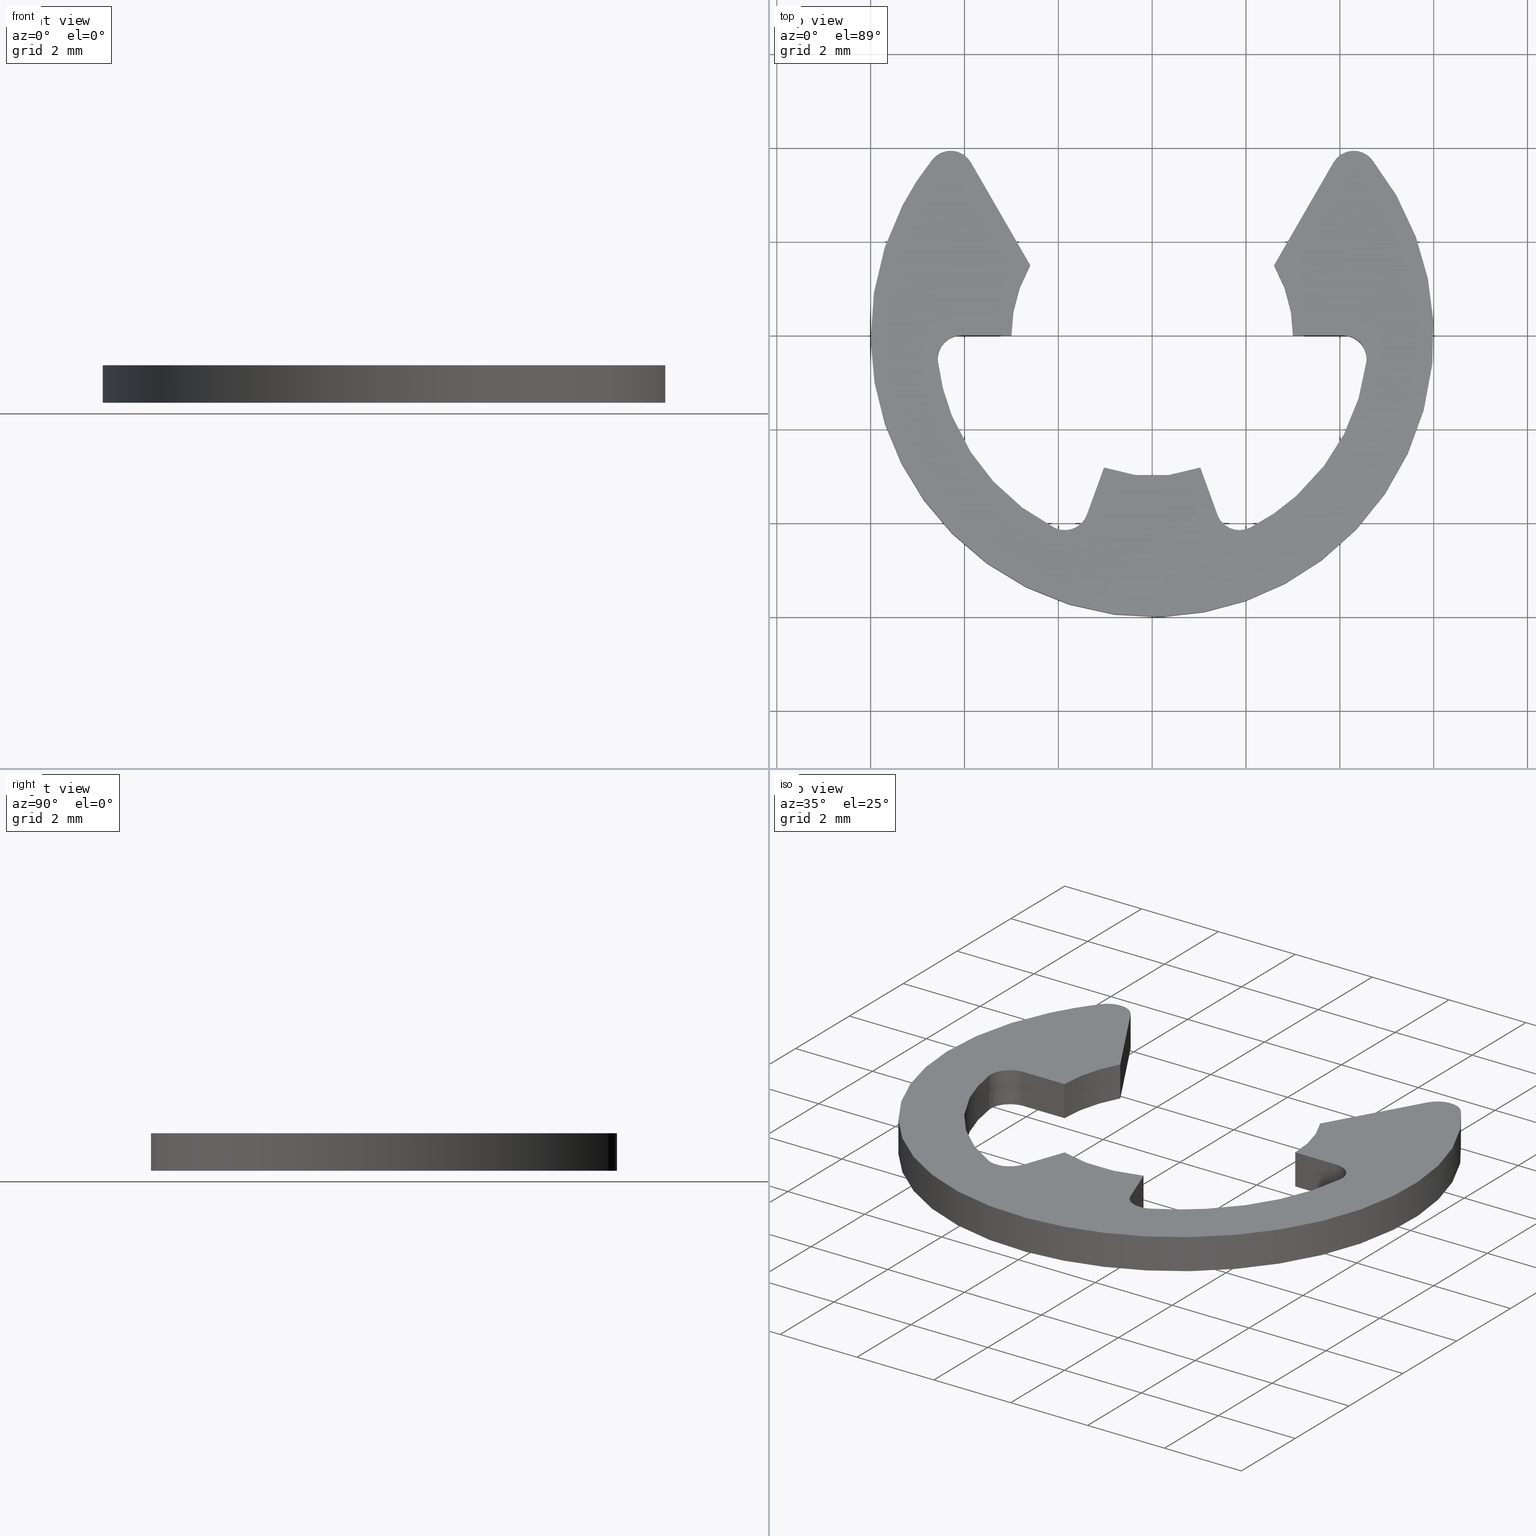
[diagram: canonical four-view strip — front | top / right | iso, engineering-drawing reading convention]
A machine part, canonical four-view strip (front | top / right | iso — engineering-drawing reading convention). The complete STEP part file that produces these views, byte-faithful:
ISO-10303-21;
HEADER;
/****************************************************************
 * Generated by software with PDE/Lib inside                    *
 * PDElib Version 4.4.1-0003, patched  Thursday August 19 11:58 *
 * International Technegroup Inc. (www.iti-oh.com)              *
 ****************************************************************/
FILE_DESCRIPTION((''),'2;1');
FILE_NAME('','2005-04-20T08:53:08',(''),(''),'','CADfix','');
FILE_SCHEMA(('AUTOMOTIVE_DESIGN'));
ENDSEC;
DATA;
#5=APPLICATION_CONTEXT('automotive design');
#6=APPLICATION_PROTOCOL_DEFINITION('Draft International Standard','automotive_design',1998,#5);
#7=PRODUCT_CONTEXT('None',#5,'mechanical');
#8=PRODUCT('retainer','','None',(#7));
#9=PRODUCT_RELATED_PRODUCT_CATEGORY('part','description',(#8));
#10=PRODUCT_DEFINITION_FORMATION('None','None',#8);
#11=PRODUCT_DEFINITION_CONTEXT('part definition',#5,'design');
#12=PRODUCT_DEFINITION('None','None',#10,#11);
#18=(NAMED_UNIT(*)PLANE_ANGLE_UNIT()SI_UNIT($,.RADIAN.));
#19=DIMENSIONAL_EXPONENTS(0.0,0.0,0.0,0.0,0.0,0.0,0.0);
#20=PLANE_ANGLE_MEASURE_WITH_UNIT(PLANE_ANGLE_MEASURE(0.017453292500000),#18);
#24=(CONVERSION_BASED_UNIT('DEGREE',#20)NAMED_UNIT(#19)PLANE_ANGLE_UNIT());
#28=(NAMED_UNIT(*)SI_UNIT($,.STERADIAN.)SOLID_ANGLE_UNIT());
#32=(LENGTH_UNIT()NAMED_UNIT(*)SI_UNIT(.MILLI.,.METRE.));
#34=UNCERTAINTY_MEASURE_WITH_UNIT(LENGTH_MEASURE(0.001000000000000),#32,'DISTANCE_ACCURACY_VALUE','');
#36=(GEOMETRIC_REPRESENTATION_CONTEXT(3)GLOBAL_UNCERTAINTY_ASSIGNED_CONTEXT((#34))GLOBAL_UNIT_ASSIGNED_CONTEXT((#24,#28,#32))REPRESENTATION_CONTEXT('None','None'));
#37=AXIS2_PLACEMENT_3D('',#38,#39,#40);
#38=CARTESIAN_POINT('',(0.0,0.0,0.0));
#39=DIRECTION('',(0.0,0.0,1.0));
#40=DIRECTION('',(1.0,0.0,0.0));
#41=ADVANCED_BREP_SHAPE_REPRESENTATION('',(#37,#941),#36);
#42=PRODUCT_DEFINITION_SHAPE('','',#12);
#43=SHAPE_DEFINITION_REPRESENTATION(#42,#41);
#44=CARTESIAN_POINT('',(-6.581332474170076,-6.496215426562750,0.0));
#45=CARTESIAN_POINT('',(6.581332683235766,-6.496215426562750,0.0));
#46=CARTESIAN_POINT('',(-6.581332474170076,4.430458852543654,0.0));
#47=CARTESIAN_POINT('',(6.581332683235766,4.430458852543654,0.0));
#48=B_SPLINE_SURFACE_WITH_KNOTS('',1,1,((#44,#46),(#45,#47)),.UNSPECIFIED.,.F.,.F.,.U.,(2,2),(2,2),(0.0,13.162665157405840),(0.0,10.926674279106400),.UNSPECIFIED.);
#49=CARTESIAN_POINT('',(3.863010000000000,3.684273000000000,0.0));
#50=VERTEX_POINT('',#49);
#51=CARTESIAN_POINT('',(4.686570576171150,3.746472505513260,0.0));
#52=VERTEX_POINT('',#51);
#53=CARTESIAN_POINT('',(3.863010000000000,3.684273000000000,0.0));
#54=CARTESIAN_POINT('',(3.995044526100701,3.912964423524880,0.0));
#55=CARTESIAN_POINT('',(4.258364277141856,3.932851677456801,0.0));
#56=CARTESIAN_POINT('',(4.521684028183013,3.952738931388722,0.0));
#57=CARTESIAN_POINT('',(4.686570576171150,3.746472505513260,0.0));
#65=(BOUNDED_CURVE()B_SPLINE_CURVE(2,(#53,#54,#55,#56,#57),.UNSPECIFIED.,.F.,.U.)B_SPLINE_CURVE_WITH_KNOTS((3,2,3),(0.0,0.500000000000000,1.0),.UNSPECIFIED.)CURVE()GEOMETRIC_REPRESENTATION_ITEM()RATIONAL_B_SPLINE_CURVE((1.0,0.884252020448958,1.0,0.884252020448958,1.0))REPRESENTATION_ITEM(''));
#66=EDGE_CURVE('',#50,#52,#65,.T.);
#67=ORIENTED_EDGE('',*,*,#66,.T.);
#68=CARTESIAN_POINT('',(-4.686575545676350,3.746466289007340,0.0));
#69=VERTEX_POINT('',#68);
#70=CARTESIAN_POINT('',(4.686570576171150,3.746472505513261,0.0));
#71=CARTESIAN_POINT('',(8.165531267817840,-0.605459822599134,0.0));
#72=CARTESIAN_POINT('',(4.082768349135098,-4.396703606942442,0.0));
#73=CARTESIAN_POINT('',(0.000005430452355,-8.187947391285750,0.0));
#74=CARTESIAN_POINT('',(-4.082762517122990,-4.396709022527594,0.0));
#75=CARTESIAN_POINT('',(-8.165530464698330,-0.605470653769442,0.0));
#76=CARTESIAN_POINT('',(-4.686575545676352,3.746466289007337,0.0));
#84=(BOUNDED_CURVE()B_SPLINE_CURVE(2,(#70,#71,#72,#73,#74,#75,#76),.UNSPECIFIED.,.F.,.U.)B_SPLINE_CURVE_WITH_KNOTS((3,2,2,3),(0.0,0.333333333333333,0.666666666666667,1.0),.UNSPECIFIED.)CURVE()GEOMETRIC_REPRESENTATION_ITEM()RATIONAL_B_SPLINE_CURVE((1.0,0.732784385789331,1.0,0.732784385789331,1.0,0.732784385789331,1.0))REPRESENTATION_ITEM(''));
#85=EDGE_CURVE('',#52,#69,#84,.T.);
#86=ORIENTED_EDGE('',*,*,#85,.T.);
#87=CARTESIAN_POINT('',(-3.863011481367470,3.684265317414915,0.0));
#88=VERTEX_POINT('',#87);
#89=CARTESIAN_POINT('',(-4.686575545676350,3.746466289007340,0.0));
#90=CARTESIAN_POINT('',(-4.521688937545055,3.952732709392030,0.0));
#91=CARTESIAN_POINT('',(-4.258368013302476,3.932845010295169,0.0));
#92=CARTESIAN_POINT('',(-3.995047089059899,3.912957311198309,0.0));
#93=CARTESIAN_POINT('',(-3.863011481367468,3.684265317414917,0.0));
#101=(BOUNDED_CURVE()B_SPLINE_CURVE(2,(#89,#90,#91,#92,#93),.UNSPECIFIED.,.F.,.U.)B_SPLINE_CURVE_WITH_KNOTS((3,2,3),(0.0,0.500000000000000,1.0),.UNSPECIFIED.)CURVE()GEOMETRIC_REPRESENTATION_ITEM()RATIONAL_B_SPLINE_CURVE((1.0,0.884251858320853,1.0,0.884251858320853,1.0))REPRESENTATION_ITEM(''));
#102=EDGE_CURVE('',#69,#88,#101,.T.);
#103=ORIENTED_EDGE('',*,*,#102,.T.);
#104=CARTESIAN_POINT('',(-2.599997000000000,1.496666000000000,0.0));
#105=VERTEX_POINT('',#104);
#106=CARTESIAN_POINT('',(-3.863011481367470,3.684265317414915,0.0));
#107=CARTESIAN_POINT('',(-2.599997000000000,1.496666000000000,0.0));
#108=QUASI_UNIFORM_CURVE('',1,(#106,#107),.UNSPECIFIED.,.F.,.U.);
#109=EDGE_CURVE('',#88,#105,#108,.T.);
#110=ORIENTED_EDGE('',*,*,#109,.T.);
#111=CARTESIAN_POINT('',(-2.999999999999780,-0.000001151917306,0.0));
#112=VERTEX_POINT('',#111);
#113=CARTESIAN_POINT('',(-2.999999999999780,-0.000001151917306,0.0));
#114=CARTESIAN_POINT('',(-2.999999839543698,0.801785137004089,0.0));
#115=CARTESIAN_POINT('',(-2.599997000000000,1.496666000000000,0.0));
#123=(BOUNDED_CURVE()B_SPLINE_CURVE(2,(#113,#114,#115),.UNSPECIFIED.,.F.,.U.)CURVE()GEOMETRIC_REPRESENTATION_ITEM()QUASI_UNIFORM_CURVE()RATIONAL_B_SPLINE_CURVE((1.0,0.966091555526800,1.0))REPRESENTATION_ITEM(''));
#124=EDGE_CURVE('',#112,#105,#123,.T.);
#125=ORIENTED_EDGE('',*,*,#124,.F.);
#126=CARTESIAN_POINT('',(-4.069397000000000,0.0,0.0));
#127=VERTEX_POINT('',#126);
#128=CARTESIAN_POINT('',(-2.999999999999780,-0.000001151917306,0.0));
#129=CARTESIAN_POINT('',(-4.069397000000000,0.0,0.0));
#130=QUASI_UNIFORM_CURVE('',1,(#128,#129),.UNSPECIFIED.,.F.,.U.);
#131=EDGE_CURVE('',#112,#127,#130,.T.);
#132=ORIENTED_EDGE('',*,*,#131,.T.);
#133=CARTESIAN_POINT('',(-4.565665037338840,-0.560975692827991,0.0));
#134=VERTEX_POINT('',#133);
#135=CARTESIAN_POINT('',(-4.565665037338842,-0.560975692827991,0.0));
#136=CARTESIAN_POINT('',(-4.593134099878816,-0.337410906238256,0.0));
#137=CARTESIAN_POINT('',(-4.443888552918084,-0.168705453119128,0.0));
#138=CARTESIAN_POINT('',(-4.294643005957350,0.0,0.0));
#139=CARTESIAN_POINT('',(-4.069397000000000,0.0,0.0));
#147=(BOUNDED_CURVE()B_SPLINE_CURVE(2,(#135,#136,#137,#138,#139),.UNSPECIFIED.,.F.,.U.)B_SPLINE_CURVE_WITH_KNOTS((3,2,3),(0.0,0.500000000000000,1.0),.UNSPECIFIED.)CURVE()GEOMETRIC_REPRESENTATION_ITEM()RATIONAL_B_SPLINE_CURVE((1.0,0.911753556001221,1.0,0.911753556001221,1.0))REPRESENTATION_ITEM(''));
#148=EDGE_CURVE('',#134,#127,#147,.T.);
#149=ORIENTED_EDGE('',*,*,#148,.F.);
#150=CARTESIAN_POINT('',(-2.088696213768935,-4.098456798184810,0.0));
#151=VERTEX_POINT('',#150);
#152=CARTESIAN_POINT('',(-2.088696213768935,-4.098456798184815,0.0));
#153=CARTESIAN_POINT('',(-4.267449413650987,-2.988098977322558,0.0));
#154=CARTESIAN_POINT('',(-4.565665037338840,-0.560975692827991,0.0));
#162=(BOUNDED_CURVE()B_SPLINE_CURVE(2,(#152,#153,#154),.UNSPECIFIED.,.F.,.U.)CURVE()GEOMETRIC_REPRESENTATION_ITEM()QUASI_UNIFORM_CURVE()RATIONAL_B_SPLINE_CURVE((1.0,0.882986431893304,1.0))REPRESENTATION_ITEM(''));
#163=EDGE_CURVE('',#151,#134,#162,.T.);
#164=ORIENTED_EDGE('',*,*,#163,.F.);
#165=CARTESIAN_POINT('',(-1.391817958012584,-3.823983127035450,0.0));
#166=VERTEX_POINT('',#165);
#167=CARTESIAN_POINT('',(-1.391817958012584,-3.823983127035450,0.0));
#168=CARTESIAN_POINT('',(-1.468856879404417,-4.035644854333030,0.0));
#169=CARTESIAN_POINT('',(-1.678433037067881,-4.118188881075313,0.0));
#170=CARTESIAN_POINT('',(-1.888009194731345,-4.200732907817598,0.0));
#171=CARTESIAN_POINT('',(-2.088696213768936,-4.098456798184811,0.0));
#179=(BOUNDED_CURVE()B_SPLINE_CURVE(2,(#167,#168,#169,#170,#171),.UNSPECIFIED.,.F.,.U.)B_SPLINE_CURVE_WITH_KNOTS((3,2,3),(0.0,0.500000000000000,1.0),.UNSPECIFIED.)CURVE()GEOMETRIC_REPRESENTATION_ITEM()RATIONAL_B_SPLINE_CURVE((1.0,0.911753678768537,1.0,0.911753678768537,1.0))REPRESENTATION_ITEM(''));
#180=EDGE_CURVE('',#166,#151,#179,.T.);
#181=ORIENTED_EDGE('',*,*,#180,.F.);
#182=CARTESIAN_POINT('',(-1.026060000000012,-2.819076000000000,0.0));
#183=VERTEX_POINT('',#182);
#184=CARTESIAN_POINT('',(-1.391817958012584,-3.823983127035450,0.0));
#185=CARTESIAN_POINT('',(-1.026060000000012,-2.819076000000000,0.0));
#186=QUASI_UNIFORM_CURVE('',1,(#184,#185),.UNSPECIFIED.,.F.,.U.);
#187=EDGE_CURVE('',#166,#183,#186,.T.);
#188=ORIENTED_EDGE('',*,*,#187,.T.);
#189=CARTESIAN_POINT('',(1.026058412686930,-2.819078596590450,0.0));
#190=VERTEX_POINT('',#189);
#191=CARTESIAN_POINT('',(1.026058412686930,-2.819078596590450,0.0));
#192=CARTESIAN_POINT('',(-0.000000941773228,-3.192532055437769,0.0));
#193=CARTESIAN_POINT('',(-1.026060000000012,-2.819076000000000,0.0));
#201=(BOUNDED_CURVE()B_SPLINE_CURVE(2,(#191,#192,#193),.UNSPECIFIED.,.F.,.U.)CURVE()GEOMETRIC_REPRESENTATION_ITEM()QUASI_UNIFORM_CURVE()RATIONAL_B_SPLINE_CURVE((1.0,0.939692729881005,1.0))REPRESENTATION_ITEM(''));
#202=EDGE_CURVE('',#190,#183,#201,.T.);
#203=ORIENTED_EDGE('',*,*,#202,.F.);
#204=CARTESIAN_POINT('',(1.391815000000000,-3.823982000000000,0.0));
#205=VERTEX_POINT('',#204);
#206=CARTESIAN_POINT('',(1.026058412686930,-2.819078596590450,0.0));
#207=CARTESIAN_POINT('',(1.391815000000000,-3.823982000000000,0.0));
#208=QUASI_UNIFORM_CURVE('',1,(#206,#207),.UNSPECIFIED.,.F.,.U.);
#209=EDGE_CURVE('',#190,#205,#208,.T.);
#210=ORIENTED_EDGE('',*,*,#209,.T.);
#211=CARTESIAN_POINT('',(2.088695450060575,-4.098452796061555,0.0));
#212=VERTEX_POINT('',#211);
#213=CARTESIAN_POINT('',(2.088695450060575,-4.098452796061555,0.0));
#214=CARTESIAN_POINT('',(1.888008509862501,-4.200729531546816,0.0));
#215=CARTESIAN_POINT('',(1.678431727553087,-4.118186383333256,0.0));
#216=CARTESIAN_POINT('',(1.468854945243672,-4.035643235119693,0.0));
#217=CARTESIAN_POINT('',(1.391815000000000,-3.823982000000000,0.0));
#225=(BOUNDED_CURVE()B_SPLINE_CURVE(2,(#213,#214,#215,#216,#217),.UNSPECIFIED.,.F.,.U.)B_SPLINE_CURVE_WITH_KNOTS((3,2,3),(0.0,0.500000000000000,1.0),.UNSPECIFIED.)CURVE()GEOMETRIC_REPRESENTATION_ITEM()RATIONAL_B_SPLINE_CURVE((1.0,0.911753755466187,1.0,0.911753755466187,1.0))REPRESENTATION_ITEM(''));
#226=EDGE_CURVE('',#212,#205,#225,.T.);
#227=ORIENTED_EDGE('',*,*,#226,.F.);
#228=CARTESIAN_POINT('',(4.565665992471750,-0.560975975588001,0.0));
#229=VERTEX_POINT('',#228);
#230=CARTESIAN_POINT('',(4.565665992471750,-0.560975975588001,0.0));
#231=CARTESIAN_POINT('',(4.267448520479672,-2.988096558573858,0.0));
#232=CARTESIAN_POINT('',(2.088695450060575,-4.098452796061555,0.0));
#240=(BOUNDED_CURVE()B_SPLINE_CURVE(2,(#230,#231,#232),.UNSPECIFIED.,.F.,.U.)CURVE()GEOMETRIC_REPRESENTATION_ITEM()QUASI_UNIFORM_CURVE()RATIONAL_B_SPLINE_CURVE((1.0,0.882986498269924,1.0))REPRESENTATION_ITEM(''));
#241=EDGE_CURVE('',#229,#212,#240,.T.);
#242=ORIENTED_EDGE('',*,*,#241,.F.);
#243=CARTESIAN_POINT('',(4.069397157079631,-2.464695E-014,0.0));
#244=VERTEX_POINT('',#243);
#245=CARTESIAN_POINT('',(4.069397157079631,-2.461139E-014,0.0));
#246=CARTESIAN_POINT('',(4.294643165169120,-0.000000070763144,0.0));
#247=CARTESIAN_POINT('',(4.443888659346118,-0.168705573424196,0.0));
#248=CARTESIAN_POINT('',(4.593134153523118,-0.337411076085247,0.0));
#249=CARTESIAN_POINT('',(4.565665992471750,-0.560975975588001,0.0));
#257=(BOUNDED_CURVE()B_SPLINE_CURVE(2,(#245,#246,#247,#248,#249),.UNSPECIFIED.,.F.,.U.)B_SPLINE_CURVE_WITH_KNOTS((3,2,3),(0.0,0.500000000000000,1.0),.UNSPECIFIED.)CURVE()GEOMETRIC_REPRESENTATION_ITEM()RATIONAL_B_SPLINE_CURVE((1.0,0.911753554545202,1.0,0.911753554545202,1.0))REPRESENTATION_ITEM(''));
#258=EDGE_CURVE('',#244,#229,#257,.T.);
#259=ORIENTED_EDGE('',*,*,#258,.F.);
#260=CARTESIAN_POINT('',(3.0,0.0,0.0));
#261=VERTEX_POINT('',#260);
#262=CARTESIAN_POINT('',(4.069397157079631,-2.464695E-014,0.0));
#263=CARTESIAN_POINT('',(3.0,0.0,0.0));
#264=QUASI_UNIFORM_CURVE('',1,(#262,#263),.UNSPECIFIED.,.F.,.U.);
#265=EDGE_CURVE('',#244,#261,#264,.T.);
#266=ORIENTED_EDGE('',*,*,#265,.T.);
#267=CARTESIAN_POINT('',(2.599998350847290,1.496665819610834,0.0));
#268=VERTEX_POINT('',#267);
#269=CARTESIAN_POINT('',(2.599998350847290,1.496665819610836,0.0));
#270=CARTESIAN_POINT('',(3.000000000000000,0.801785496624863,0.0));
#271=CARTESIAN_POINT('',(3.0,0.0,0.0));
#279=(BOUNDED_CURVE()B_SPLINE_CURVE(2,(#269,#270,#271),.UNSPECIFIED.,.F.,.U.)CURVE()GEOMETRIC_REPRESENTATION_ITEM()QUASI_UNIFORM_CURVE()RATIONAL_B_SPLINE_CURVE((1.0,0.966091640826350,1.0))REPRESENTATION_ITEM(''));
#280=EDGE_CURVE('',#268,#261,#279,.T.);
#281=ORIENTED_EDGE('',*,*,#280,.F.);
#282=CARTESIAN_POINT('',(2.599998350847290,1.496665819610834,0.0));
#283=CARTESIAN_POINT('',(3.863010000000000,3.684273000000000,0.0));
#284=QUASI_UNIFORM_CURVE('',1,(#282,#283),.UNSPECIFIED.,.F.,.U.);
#285=EDGE_CURVE('',#268,#50,#284,.T.);
#286=ORIENTED_EDGE('',*,*,#285,.T.);
#287=EDGE_LOOP('',(#67,#86,#103,#110,#125,#132,#149,#164,#181,#188,#203,#210,#227,#242,#259,#266,#281,#286));
#288=FACE_OUTER_BOUND('',#287,.T.);
#289=ADVANCED_FACE('',(#288),#48,.F.);
#290=CARTESIAN_POINT('',(-6.581331910933198,-6.496215426562749,0.799987999999900));
#291=CARTESIAN_POINT('',(6.581332656440507,-6.496215426562750,0.799987999999900));
#292=CARTESIAN_POINT('',(-6.581331910933198,4.430458852543654,0.799987999999900));
#293=CARTESIAN_POINT('',(6.581332656440507,4.430458852543654,0.799987999999900));
#294=B_SPLINE_SURFACE_WITH_KNOTS('',1,1,((#290,#292),(#291,#293)),.UNSPECIFIED.,.F.,.F.,.U.,(2,2),(2,2),(0.0,13.162664567373710),(0.0,10.926674279106400),.UNSPECIFIED.);
#295=CARTESIAN_POINT('',(3.863010000000000,3.684273000000000,0.799987999999918));
#296=VERTEX_POINT('',#295);
#297=CARTESIAN_POINT('',(4.686570576171150,3.746472505513260,0.799987999999918));
#298=VERTEX_POINT('',#297);
#299=CARTESIAN_POINT('',(3.863010000000000,3.684273000000000,0.799987999999918));
#300=CARTESIAN_POINT('',(3.995044526100701,3.912964423524880,0.799987999999918));
#301=CARTESIAN_POINT('',(4.258364277141856,3.932851677456801,0.799987999999918));
#302=CARTESIAN_POINT('',(4.521684028183013,3.952738931388722,0.799987999999918));
#303=CARTESIAN_POINT('',(4.686570576171150,3.746472505513260,0.799987999999918));
#311=(BOUNDED_CURVE()B_SPLINE_CURVE(2,(#299,#300,#301,#302,#303),.UNSPECIFIED.,.F.,.U.)B_SPLINE_CURVE_WITH_KNOTS((3,2,3),(0.0,0.500000000000000,1.0),.UNSPECIFIED.)CURVE()GEOMETRIC_REPRESENTATION_ITEM()RATIONAL_B_SPLINE_CURVE((1.0,0.884252020448958,1.0,0.884252020448958,1.0))REPRESENTATION_ITEM(''));
#312=EDGE_CURVE('',#296,#298,#311,.T.);
#313=ORIENTED_EDGE('',*,*,#312,.F.);
#314=CARTESIAN_POINT('',(2.599998350847290,1.496665819610834,0.799987999999918));
#315=VERTEX_POINT('',#314);
#316=CARTESIAN_POINT('',(2.599998350847290,1.496665819610834,0.799987999999918));
#317=CARTESIAN_POINT('',(3.863010000000000,3.684273000000000,0.799987999999918));
#318=QUASI_UNIFORM_CURVE('',1,(#316,#317),.UNSPECIFIED.,.F.,.U.);
#319=EDGE_CURVE('',#315,#296,#318,.T.);
#320=ORIENTED_EDGE('',*,*,#319,.F.);
#321=CARTESIAN_POINT('',(3.0,0.0,0.799987999999918));
#322=VERTEX_POINT('',#321);
#323=CARTESIAN_POINT('',(2.599998350847290,1.496665819610836,0.799987999999918));
#324=CARTESIAN_POINT('',(3.000000000000000,0.801785496624863,0.799987999999918));
#325=CARTESIAN_POINT('',(3.0,0.0,0.799987999999918));
#333=(BOUNDED_CURVE()B_SPLINE_CURVE(2,(#323,#324,#325),.UNSPECIFIED.,.F.,.U.)CURVE()GEOMETRIC_REPRESENTATION_ITEM()QUASI_UNIFORM_CURVE()RATIONAL_B_SPLINE_CURVE((1.0,0.966091640826350,1.0))REPRESENTATION_ITEM(''));
#334=EDGE_CURVE('',#315,#322,#333,.T.);
#335=ORIENTED_EDGE('',*,*,#334,.T.);
#336=CARTESIAN_POINT('',(4.069397157079631,-2.464695E-014,0.799987999999918));
#337=VERTEX_POINT('',#336);
#338=CARTESIAN_POINT('',(4.069397157079631,-2.464695E-014,0.799987999999918));
#339=CARTESIAN_POINT('',(3.0,0.0,0.799987999999918));
#340=QUASI_UNIFORM_CURVE('',1,(#338,#339),.UNSPECIFIED.,.F.,.U.);
#341=EDGE_CURVE('',#337,#322,#340,.T.);
#342=ORIENTED_EDGE('',*,*,#341,.F.);
#343=CARTESIAN_POINT('',(4.565665992471750,-0.560975975588001,0.799987999999918));
#344=VERTEX_POINT('',#343);
#345=CARTESIAN_POINT('',(4.069397157079631,-2.461139E-014,0.799987999999918));
#346=CARTESIAN_POINT('',(4.294643165169120,-0.000000070763144,0.799987999999918));
#347=CARTESIAN_POINT('',(4.443888659346118,-0.168705573424196,0.799987999999918));
#348=CARTESIAN_POINT('',(4.593134153523118,-0.337411076085247,0.799987999999918));
#349=CARTESIAN_POINT('',(4.565665992471750,-0.560975975588001,0.799987999999918));
#357=(BOUNDED_CURVE()B_SPLINE_CURVE(2,(#345,#346,#347,#348,#349),.UNSPECIFIED.,.F.,.U.)B_SPLINE_CURVE_WITH_KNOTS((3,2,3),(0.0,0.500000000000000,1.0),.UNSPECIFIED.)CURVE()GEOMETRIC_REPRESENTATION_ITEM()RATIONAL_B_SPLINE_CURVE((1.0,0.911753554545202,1.0,0.911753554545202,1.0))REPRESENTATION_ITEM(''));
#358=EDGE_CURVE('',#337,#344,#357,.T.);
#359=ORIENTED_EDGE('',*,*,#358,.T.);
#360=CARTESIAN_POINT('',(2.088695450060575,-4.098452796061555,0.799987999999918));
#361=VERTEX_POINT('',#360);
#362=CARTESIAN_POINT('',(4.565665992471750,-0.560975975588001,0.799987999999918));
#363=CARTESIAN_POINT('',(4.267448520479672,-2.988096558573858,0.799987999999918));
#364=CARTESIAN_POINT('',(2.088695450060575,-4.098452796061555,0.799987999999918));
#372=(BOUNDED_CURVE()B_SPLINE_CURVE(2,(#362,#363,#364),.UNSPECIFIED.,.F.,.U.)CURVE()GEOMETRIC_REPRESENTATION_ITEM()QUASI_UNIFORM_CURVE()RATIONAL_B_SPLINE_CURVE((1.0,0.882986498269924,1.0))REPRESENTATION_ITEM(''));
#373=EDGE_CURVE('',#344,#361,#372,.T.);
#374=ORIENTED_EDGE('',*,*,#373,.T.);
#375=CARTESIAN_POINT('',(1.391815000000000,-3.823982000000000,0.799987999999918));
#376=VERTEX_POINT('',#375);
#377=CARTESIAN_POINT('',(2.088695450060575,-4.098452796061555,0.799987999999918));
#378=CARTESIAN_POINT('',(1.888008509862501,-4.200729531546816,0.799987999999918));
#379=CARTESIAN_POINT('',(1.678431727553087,-4.118186383333256,0.799987999999918));
#380=CARTESIAN_POINT('',(1.468854945243672,-4.035643235119693,0.799987999999918));
#381=CARTESIAN_POINT('',(1.391815000000000,-3.823982000000000,0.799987999999918));
#389=(BOUNDED_CURVE()B_SPLINE_CURVE(2,(#377,#378,#379,#380,#381),.UNSPECIFIED.,.F.,.U.)B_SPLINE_CURVE_WITH_KNOTS((3,2,3),(0.0,0.500000000000000,1.0),.UNSPECIFIED.)CURVE()GEOMETRIC_REPRESENTATION_ITEM()RATIONAL_B_SPLINE_CURVE((1.0,0.911753755466187,1.0,0.911753755466187,1.0))REPRESENTATION_ITEM(''));
#390=EDGE_CURVE('',#361,#376,#389,.T.);
#391=ORIENTED_EDGE('',*,*,#390,.T.);
#392=CARTESIAN_POINT('',(1.026058412686930,-2.819078596590450,0.799987999999918));
#393=VERTEX_POINT('',#392);
#394=CARTESIAN_POINT('',(1.026058412686930,-2.819078596590450,0.799987999999918));
#395=CARTESIAN_POINT('',(1.391815000000000,-3.823982000000000,0.799987999999918));
#396=QUASI_UNIFORM_CURVE('',1,(#394,#395),.UNSPECIFIED.,.F.,.U.);
#397=EDGE_CURVE('',#393,#376,#396,.T.);
#398=ORIENTED_EDGE('',*,*,#397,.F.);
#399=CARTESIAN_POINT('',(-1.026060000000012,-2.819076000000000,0.799987999999918));
#400=VERTEX_POINT('',#399);
#401=CARTESIAN_POINT('',(1.026058412686930,-2.819078596590450,0.799987999999918));
#402=CARTESIAN_POINT('',(-0.000000941773228,-3.192532055437769,0.799987999999918));
#403=CARTESIAN_POINT('',(-1.026060000000012,-2.819076000000000,0.799987999999918));
#411=(BOUNDED_CURVE()B_SPLINE_CURVE(2,(#401,#402,#403),.UNSPECIFIED.,.F.,.U.)CURVE()GEOMETRIC_REPRESENTATION_ITEM()QUASI_UNIFORM_CURVE()RATIONAL_B_SPLINE_CURVE((1.0,0.939692729881005,1.0))REPRESENTATION_ITEM(''));
#412=EDGE_CURVE('',#393,#400,#411,.T.);
#413=ORIENTED_EDGE('',*,*,#412,.T.);
#414=CARTESIAN_POINT('',(-1.391817958012584,-3.823983127035450,0.799987999999918));
#415=VERTEX_POINT('',#414);
#416=CARTESIAN_POINT('',(-1.391817958012584,-3.823983127035450,0.799987999999918));
#417=CARTESIAN_POINT('',(-1.026060000000012,-2.819076000000000,0.799987999999918));
#418=QUASI_UNIFORM_CURVE('',1,(#416,#417),.UNSPECIFIED.,.F.,.U.);
#419=EDGE_CURVE('',#415,#400,#418,.T.);
#420=ORIENTED_EDGE('',*,*,#419,.F.);
#421=CARTESIAN_POINT('',(-2.088696213768935,-4.098456798184810,0.799987999999918));
#422=VERTEX_POINT('',#421);
#423=CARTESIAN_POINT('',(-1.391817958012584,-3.823983127035450,0.799987999999918));
#424=CARTESIAN_POINT('',(-1.468856879404417,-4.035644854333030,0.799987999999918));
#425=CARTESIAN_POINT('',(-1.678433037067881,-4.118188881075313,0.799987999999918));
#426=CARTESIAN_POINT('',(-1.888009194731345,-4.200732907817598,0.799987999999918));
#427=CARTESIAN_POINT('',(-2.088696213768936,-4.098456798184811,0.799987999999918));
#435=(BOUNDED_CURVE()B_SPLINE_CURVE(2,(#423,#424,#425,#426,#427),.UNSPECIFIED.,.F.,.U.)B_SPLINE_CURVE_WITH_KNOTS((3,2,3),(0.0,0.500000000000000,1.0),.UNSPECIFIED.)CURVE()GEOMETRIC_REPRESENTATION_ITEM()RATIONAL_B_SPLINE_CURVE((1.0,0.911753678768537,1.0,0.911753678768537,1.0))REPRESENTATION_ITEM(''));
#436=EDGE_CURVE('',#415,#422,#435,.T.);
#437=ORIENTED_EDGE('',*,*,#436,.T.);
#438=CARTESIAN_POINT('',(-4.565665037338840,-0.560975692827991,0.799987999999918));
#439=VERTEX_POINT('',#438);
#440=CARTESIAN_POINT('',(-2.088696213768935,-4.098456798184815,0.799987999999918));
#441=CARTESIAN_POINT('',(-4.267449413650987,-2.988098977322558,0.799987999999918));
#442=CARTESIAN_POINT('',(-4.565665037338840,-0.560975692827991,0.799987999999918));
#450=(BOUNDED_CURVE()B_SPLINE_CURVE(2,(#440,#441,#442),.UNSPECIFIED.,.F.,.U.)CURVE()GEOMETRIC_REPRESENTATION_ITEM()QUASI_UNIFORM_CURVE()RATIONAL_B_SPLINE_CURVE((1.0,0.882986431893304,1.0))REPRESENTATION_ITEM(''));
#451=EDGE_CURVE('',#422,#439,#450,.T.);
#452=ORIENTED_EDGE('',*,*,#451,.T.);
#453=CARTESIAN_POINT('',(-4.069397000000000,0.0,0.799987999999918));
#454=VERTEX_POINT('',#453);
#455=CARTESIAN_POINT('',(-4.565665037338842,-0.560975692827991,0.799987999999918));
#456=CARTESIAN_POINT('',(-4.593134099878816,-0.337410906238256,0.799987999999918));
#457=CARTESIAN_POINT('',(-4.443888552918084,-0.168705453119128,0.799987999999918));
#458=CARTESIAN_POINT('',(-4.294643005957350,0.0,0.799987999999918));
#459=CARTESIAN_POINT('',(-4.069397000000000,0.0,0.799987999999918));
#467=(BOUNDED_CURVE()B_SPLINE_CURVE(2,(#455,#456,#457,#458,#459),.UNSPECIFIED.,.F.,.U.)B_SPLINE_CURVE_WITH_KNOTS((3,2,3),(0.0,0.500000000000000,1.0),.UNSPECIFIED.)CURVE()GEOMETRIC_REPRESENTATION_ITEM()RATIONAL_B_SPLINE_CURVE((1.0,0.911753556001221,1.0,0.911753556001221,1.0))REPRESENTATION_ITEM(''));
#468=EDGE_CURVE('',#439,#454,#467,.T.);
#469=ORIENTED_EDGE('',*,*,#468,.T.);
#470=CARTESIAN_POINT('',(-2.999999999999780,-0.000001151917306,0.799987999999918));
#471=VERTEX_POINT('',#470);
#472=CARTESIAN_POINT('',(-2.999999999999780,-0.000001151917306,0.799987999999918));
#473=CARTESIAN_POINT('',(-4.069397000000000,0.0,0.799987999999918));
#474=QUASI_UNIFORM_CURVE('',1,(#472,#473),.UNSPECIFIED.,.F.,.U.);
#475=EDGE_CURVE('',#471,#454,#474,.T.);
#476=ORIENTED_EDGE('',*,*,#475,.F.);
#477=CARTESIAN_POINT('',(-2.599997000000000,1.496666000000000,0.799987999999918));
#478=VERTEX_POINT('',#477);
#479=CARTESIAN_POINT('',(-2.999999999999780,-0.000001151917306,0.799987999999918));
#480=CARTESIAN_POINT('',(-2.999999839543698,0.801785137004089,0.799987999999918));
#481=CARTESIAN_POINT('',(-2.599997000000000,1.496666000000000,0.799987999999918));
#489=(BOUNDED_CURVE()B_SPLINE_CURVE(2,(#479,#480,#481),.UNSPECIFIED.,.F.,.U.)CURVE()GEOMETRIC_REPRESENTATION_ITEM()QUASI_UNIFORM_CURVE()RATIONAL_B_SPLINE_CURVE((1.0,0.966091555526800,1.0))REPRESENTATION_ITEM(''));
#490=EDGE_CURVE('',#471,#478,#489,.T.);
#491=ORIENTED_EDGE('',*,*,#490,.T.);
#492=CARTESIAN_POINT('',(-3.863011481367470,3.684265317414915,0.799987999999918));
#493=VERTEX_POINT('',#492);
#494=CARTESIAN_POINT('',(-3.863011481367470,3.684265317414915,0.799987999999918));
#495=CARTESIAN_POINT('',(-2.599997000000000,1.496666000000000,0.799987999999918));
#496=QUASI_UNIFORM_CURVE('',1,(#494,#495),.UNSPECIFIED.,.F.,.U.);
#497=EDGE_CURVE('',#493,#478,#496,.T.);
#498=ORIENTED_EDGE('',*,*,#497,.F.);
#499=CARTESIAN_POINT('',(-4.686575545676350,3.746466289007340,0.799987999999918));
#500=VERTEX_POINT('',#499);
#501=CARTESIAN_POINT('',(-4.686575545676350,3.746466289007340,0.799987999999918));
#502=CARTESIAN_POINT('',(-4.521688937545055,3.952732709392030,0.799987999999918));
#503=CARTESIAN_POINT('',(-4.258368013302476,3.932845010295169,0.799987999999918));
#504=CARTESIAN_POINT('',(-3.995047089059899,3.912957311198309,0.799987999999918));
#505=CARTESIAN_POINT('',(-3.863011481367468,3.684265317414917,0.799987999999918));
#513=(BOUNDED_CURVE()B_SPLINE_CURVE(2,(#501,#502,#503,#504,#505),.UNSPECIFIED.,.F.,.U.)B_SPLINE_CURVE_WITH_KNOTS((3,2,3),(0.0,0.500000000000000,1.0),.UNSPECIFIED.)CURVE()GEOMETRIC_REPRESENTATION_ITEM()RATIONAL_B_SPLINE_CURVE((1.0,0.884251858320853,1.0,0.884251858320853,1.0))REPRESENTATION_ITEM(''));
#514=EDGE_CURVE('',#500,#493,#513,.T.);
#515=ORIENTED_EDGE('',*,*,#514,.F.);
#516=CARTESIAN_POINT('',(4.686570576171150,3.746472505513261,0.799987999999918));
#517=CARTESIAN_POINT('',(8.165531267817840,-0.605459822599134,0.799987999999918));
#518=CARTESIAN_POINT('',(4.082768349135098,-4.396703606942442,0.799987999999918));
#519=CARTESIAN_POINT('',(0.000005430452355,-8.187947391285750,0.799987999999918));
#520=CARTESIAN_POINT('',(-4.082762517122990,-4.396709022527594,0.799987999999918));
#521=CARTESIAN_POINT('',(-8.165530464698330,-0.605470653769442,0.799987999999918));
#522=CARTESIAN_POINT('',(-4.686575545676352,3.746466289007337,0.799987999999918));
#530=(BOUNDED_CURVE()B_SPLINE_CURVE(2,(#516,#517,#518,#519,#520,#521,#522),.UNSPECIFIED.,.F.,.U.)B_SPLINE_CURVE_WITH_KNOTS((3,2,2,3),(0.0,0.333333333333333,0.666666666666667,1.0),.UNSPECIFIED.)CURVE()GEOMETRIC_REPRESENTATION_ITEM()RATIONAL_B_SPLINE_CURVE((1.0,0.732784385789331,1.0,0.732784385789331,1.0,0.732784385789331,1.0))REPRESENTATION_ITEM(''));
#531=EDGE_CURVE('',#298,#500,#530,.T.);
#532=ORIENTED_EDGE('',*,*,#531,.F.);
#533=EDGE_LOOP('',(#313,#320,#335,#342,#359,#374,#391,#398,#413,#420,#437,#452,#469,#476,#491,#498,#515,#532));
#534=FACE_OUTER_BOUND('',#533,.T.);
#535=ADVANCED_FACE('',(#534),#294,.T.);
#536=CARTESIAN_POINT('',(3.926097472078751,3.793543922414719,-0.039959396191345));
#537=CARTESIAN_POINT('',(2.536909742352494,1.387395448991825,-0.039959396191345));
#538=CARTESIAN_POINT('',(3.926097472078751,3.793543922414719,0.839947360429013));
#539=CARTESIAN_POINT('',(2.536909742352494,1.387395448991825,0.839947360429013));
#540=B_SPLINE_SURFACE_WITH_KNOTS('',1,1,((#536,#538),(#537,#539)),.UNSPECIFIED.,.F.,.F.,.U.,(2,2),(2,2),(0.0,2.778379568125513),(0.041708337925747,0.958291624821350),.UNSPECIFIED.);
#541=ORIENTED_EDGE('',*,*,#285,.F.);
#542=CARTESIAN_POINT('',(2.599998350847290,1.496665819610834,0.799987999999918));
#543=CARTESIAN_POINT('',(2.599998350847290,1.496665819610834,0.0));
#544=QUASI_UNIFORM_CURVE('',1,(#542,#543),.UNSPECIFIED.,.F.,.U.);
#545=EDGE_CURVE('',#315,#268,#544,.T.);
#546=ORIENTED_EDGE('',*,*,#545,.F.);
#547=ORIENTED_EDGE('',*,*,#319,.T.);
#548=CARTESIAN_POINT('',(3.863010000000000,3.684273000000000,0.799987999999918));
#549=CARTESIAN_POINT('',(3.863010000000000,3.684273000000000,0.0));
#550=QUASI_UNIFORM_CURVE('',1,(#548,#549),.UNSPECIFIED.,.F.,.U.);
#551=EDGE_CURVE('',#296,#50,#550,.T.);
#552=ORIENTED_EDGE('',*,*,#551,.T.);
#553=EDGE_LOOP('',(#541,#546,#547,#552));
#554=FACE_OUTER_BOUND('',#553,.T.);
#555=ADVANCED_FACE('',(#554),#540,.T.);
#556=CARTESIAN_POINT('',(2.999885769192513,-0.026179606495119,0.819987699999916));
#557=CARTESIAN_POINT('',(2.999885769192513,-0.026179606495119,-0.020499692499998));
#558=CARTESIAN_POINT('',(3.007369289381982,0.831346870231597,0.819987699999916));
#559=CARTESIAN_POINT('',(3.007369289381982,0.831346870231597,-0.020499692499998));
#560=CARTESIAN_POINT('',(2.560502567057572,1.563274321445720,0.819987699999916));
#561=CARTESIAN_POINT('',(2.560502567057572,1.563274321445720,-0.020499692499998));
#569=(BOUNDED_SURFACE()B_SPLINE_SURFACE(1,2,((#556,#558,#560),(#557,#559,#561)),.UNSPECIFIED.,.F.,.F.,.U.)B_SPLINE_SURFACE_WITH_KNOTS((2,2),(3,3),(0.0,1.0),(0.0,0.966415662023844),.UNSPECIFIED.)GEOMETRIC_REPRESENTATION_ITEM()RATIONAL_B_SPLINE_SURFACE(((1.0,0.960202746810327,0.997326871196711),(1.0,0.960202746810327,0.997326871196711)))REPRESENTATION_ITEM('')SURFACE());
#570=ORIENTED_EDGE('',*,*,#280,.T.);
#571=CARTESIAN_POINT('',(3.0,0.0,0.799987999999918));
#572=CARTESIAN_POINT('',(3.0,0.0,0.0));
#573=QUASI_UNIFORM_CURVE('',1,(#571,#572),.UNSPECIFIED.,.F.,.U.);
#574=EDGE_CURVE('',#322,#261,#573,.T.);
#575=ORIENTED_EDGE('',*,*,#574,.F.);
#576=ORIENTED_EDGE('',*,*,#334,.F.);
#577=ORIENTED_EDGE('',*,*,#545,.T.);
#578=EDGE_LOOP('',(#570,#575,#576,#577));
#579=FACE_OUTER_BOUND('',#578,.T.);
#580=ADVANCED_FACE('',(#579),#569,.F.);
#581=CARTESIAN_POINT('',(2.946583625538485,0.0,0.839947369010522));
#582=CARTESIAN_POINT('',(2.946583625538485,0.0,-0.039959419077755));
#583=CARTESIAN_POINT('',(4.122813330756877,0.0,0.839947369010522));
#584=CARTESIAN_POINT('',(4.122813330756877,0.0,-0.039959419077755));
#585=B_SPLINE_SURFACE_WITH_KNOTS('',1,1,((#581,#583),(#582,#584)),.UNSPECIFIED.,.F.,.F.,.U.,(2,2),(2,2),(0.041708366239443,0.958291685914621),(0.041708343880251,0.958291499657556),.UNSPECIFIED.);
#586=ORIENTED_EDGE('',*,*,#265,.F.);
#587=CARTESIAN_POINT('',(4.069397157079631,-2.464695E-014,0.799987999999918));
#588=CARTESIAN_POINT('',(4.069397157079631,-2.464695E-014,0.0));
#589=QUASI_UNIFORM_CURVE('',1,(#587,#588),.UNSPECIFIED.,.F.,.U.);
#590=EDGE_CURVE('',#337,#244,#589,.T.);
#591=ORIENTED_EDGE('',*,*,#590,.F.);
#592=ORIENTED_EDGE('',*,*,#341,.T.);
#593=ORIENTED_EDGE('',*,*,#574,.T.);
#594=EDGE_LOOP('',(#586,#591,#592,#593));
#595=FACE_OUTER_BOUND('',#594,.T.);
#596=ADVANCED_FACE('',(#595),#585,.T.);
#597=CARTESIAN_POINT('',(4.565114012982741,-0.565304234468132,0.819987699999916));
#598=CARTESIAN_POINT('',(4.565114012982741,-0.565304234468132,-0.020499692499998));
#599=CARTESIAN_POINT('',(4.644334384170616,0.036048588859128,0.819987699999916));
#600=CARTESIAN_POINT('',(4.644334384170616,0.036048588859128,-0.020499692499998));
#601=CARTESIAN_POINT('',(4.038914146509860,-0.000930069385964,0.819987699999916));
#602=CARTESIAN_POINT('',(4.038914146509860,-0.000930069385964,-0.020499692499998));
#610=(BOUNDED_SURFACE()B_SPLINE_SURFACE(1,2,((#597,#599,#601),(#598,#600,#602)),.UNSPECIFIED.,.F.,.F.,.U.)GEOMETRIC_REPRESENTATION_ITEM()QUASI_UNIFORM_SURFACE()RATIONAL_B_SPLINE_SURFACE(((1.0,0.636078220277764,1.0),(1.0,0.636078220277764,1.0)))REPRESENTATION_ITEM('')SURFACE());
#611=ORIENTED_EDGE('',*,*,#258,.T.);
#612=CARTESIAN_POINT('',(4.565665992471750,-0.560975975588001,0.799987999999918));
#613=CARTESIAN_POINT('',(4.565665992471750,-0.560975975588001,0.0));
#614=QUASI_UNIFORM_CURVE('',1,(#612,#613),.UNSPECIFIED.,.F.,.U.);
#615=EDGE_CURVE('',#344,#229,#614,.T.);
#616=ORIENTED_EDGE('',*,*,#615,.F.);
#617=ORIENTED_EDGE('',*,*,#358,.F.);
#618=ORIENTED_EDGE('',*,*,#590,.T.);
#619=EDGE_LOOP('',(#611,#616,#617,#618));
#620=FACE_OUTER_BOUND('',#619,.T.);
#621=ADVANCED_FACE('',(#620),#610,.F.);
#622=CARTESIAN_POINT('',(1.980696403996979,-4.151727562737400,0.819987699999916));
#623=CARTESIAN_POINT('',(1.980696403996979,-4.151727562737400,-0.020499692499998));
#624=CARTESIAN_POINT('',(4.377697429945408,-3.008171960706819,0.819987699999916));
#625=CARTESIAN_POINT('',(4.377697429945408,-3.008171960706819,-0.020499692499998));
#626=CARTESIAN_POINT('',(4.585849740921130,-0.360530378322828,0.819987699999916));
#627=CARTESIAN_POINT('',(4.585849740921130,-0.360530378322828,-0.020499692499998));
#635=(BOUNDED_SURFACE()B_SPLINE_SURFACE(1,2,((#622,#624,#626),(#623,#625,#627)),.UNSPECIFIED.,.F.,.F.,.U.)B_SPLINE_SURFACE_WITH_KNOTS((2,2),(3,3),(0.0,1.0),(0.0,4.930265140732661),.UNSPECIFIED.)GEOMETRIC_REPRESENTATION_ITEM()RATIONAL_B_SPLINE_SURFACE(((1.0,0.866025403784438,1.0),(1.0,0.866025403784438,1.0)))REPRESENTATION_ITEM('')SURFACE());
#636=ORIENTED_EDGE('',*,*,#241,.T.);
#637=CARTESIAN_POINT('',(2.088695450060575,-4.098452796061555,0.799987999999918));
#638=CARTESIAN_POINT('',(2.088695450060575,-4.098452796061555,0.0));
#639=QUASI_UNIFORM_CURVE('',1,(#637,#638),.UNSPECIFIED.,.F.,.U.);
#640=EDGE_CURVE('',#361,#212,#639,.T.);
#641=ORIENTED_EDGE('',*,*,#640,.F.);
#642=ORIENTED_EDGE('',*,*,#373,.F.);
#643=ORIENTED_EDGE('',*,*,#615,.T.);
#644=EDGE_LOOP('',(#636,#641,#642,#643));
#645=FACE_OUTER_BOUND('',#644,.T.);
#646=ADVANCED_FACE('',(#645),#635,.F.);
#647=CARTESIAN_POINT('',(1.384804281168387,-3.803324299177148,0.819987699999916));
#648=CARTESIAN_POINT('',(1.384804281168387,-3.803324299177148,-0.020499692499998));
#649=CARTESIAN_POINT('',(1.573826798289820,-4.402816613817936,0.819987699999916));
#650=CARTESIAN_POINT('',(1.573826798289820,-4.402816613817936,-0.020499692499998));
#651=CARTESIAN_POINT('',(2.115433349223417,-4.083782303314967,0.819987699999916));
#652=CARTESIAN_POINT('',(2.115433349223417,-4.083782303314967,-0.020499692499998));
#660=(BOUNDED_SURFACE()B_SPLINE_SURFACE(1,2,((#647,#649,#651),(#648,#650,#652)),.UNSPECIFIED.,.F.,.F.,.U.)GEOMETRIC_REPRESENTATION_ITEM()QUASI_UNIFORM_SURFACE()RATIONAL_B_SPLINE_SURFACE(((1.0,0.622514636637620,1.0),(1.0,0.622514636637620,1.0)))REPRESENTATION_ITEM('')SURFACE());
#661=ORIENTED_EDGE('',*,*,#226,.T.);
#662=CARTESIAN_POINT('',(1.391815000000000,-3.823982000000000,0.799987999999918));
#663=CARTESIAN_POINT('',(1.391815000000000,-3.823982000000000,0.0));
#664=QUASI_UNIFORM_CURVE('',1,(#662,#663),.UNSPECIFIED.,.F.,.U.);
#665=EDGE_CURVE('',#376,#205,#664,.T.);
#666=ORIENTED_EDGE('',*,*,#665,.F.);
#667=ORIENTED_EDGE('',*,*,#390,.F.);
#668=ORIENTED_EDGE('',*,*,#640,.T.);
#669=EDGE_LOOP('',(#661,#666,#667,#668));
#670=FACE_OUTER_BOUND('',#669,.T.);
#671=ADVANCED_FACE('',(#670),#660,.F.);
#672=CARTESIAN_POINT('',(1.410084507864574,-3.874176905552463,-0.039959396191345));
#673=CARTESIAN_POINT('',(1.007789410912209,-2.768883618758204,-0.039959396191345));
#674=CARTESIAN_POINT('',(1.410084507864574,-3.874176905552463,0.839947360429013));
#675=CARTESIAN_POINT('',(1.007789410912209,-2.768883618758204,0.839947360429013));
#676=B_SPLINE_SURFACE_WITH_KNOTS('',1,1,((#672,#674),(#673,#675)),.UNSPECIFIED.,.F.,.F.,.U.,(2,2),(2,2),(0.041708356548473,0.958291561495140),(0.041708337925747,0.958291624821350),.UNSPECIFIED.);
#677=ORIENTED_EDGE('',*,*,#209,.F.);
#678=CARTESIAN_POINT('',(1.026058412686930,-2.819078596590450,0.799987999999918));
#679=CARTESIAN_POINT('',(1.026058412686930,-2.819078596590450,0.0));
#680=QUASI_UNIFORM_CURVE('',1,(#678,#679),.UNSPECIFIED.,.F.,.U.);
#681=EDGE_CURVE('',#393,#190,#680,.T.);
#682=ORIENTED_EDGE('',*,*,#681,.F.);
#683=ORIENTED_EDGE('',*,*,#397,.T.);
#684=ORIENTED_EDGE('',*,*,#665,.T.);
#685=EDGE_LOOP('',(#677,#682,#683,#684));
#686=FACE_OUTER_BOUND('',#685,.T.);
#687=ADVANCED_FACE('',(#686),#676,.T.);
#688=CARTESIAN_POINT('',(-1.050622361946017,-2.810016486175653,0.819987699999916));
#689=CARTESIAN_POINT('',(-1.050622361946017,-2.810016486175653,-0.020499692499998));
#690=CARTESIAN_POINT('',(0.040943855881788,-3.218136468260001,0.819987699999916));
#691=CARTESIAN_POINT('',(0.040943855881788,-3.218136468260001,-0.020499692499998));
#692=CARTESIAN_POINT('',(1.121773530540899,-2.782377426981788,0.819987699999916));
#693=CARTESIAN_POINT('',(1.121773530540899,-2.782377426981788,-0.020499692499998));
#701=(BOUNDED_SURFACE()B_SPLINE_SURFACE(1,2,((#688,#690,#692),(#689,#691,#693)),.UNSPECIFIED.,.F.,.F.,.U.)B_SPLINE_SURFACE_WITH_KNOTS((2,2),(3,3),(0.0,1.0),(0.0,2.248874352510209),.UNSPECIFIED.)GEOMETRIC_REPRESENTATION_ITEM()RATIONAL_B_SPLINE_SURFACE(((1.0,0.931314987442227,0.998228309499798),(1.0,0.931314987442227,0.998228309499798)))REPRESENTATION_ITEM('')SURFACE());
#702=ORIENTED_EDGE('',*,*,#202,.T.);
#703=CARTESIAN_POINT('',(-1.026060000000012,-2.819076000000000,0.799987999999918));
#704=CARTESIAN_POINT('',(-1.026060000000012,-2.819076000000000,0.0));
#705=QUASI_UNIFORM_CURVE('',1,(#703,#704),.UNSPECIFIED.,.F.,.U.);
#706=EDGE_CURVE('',#400,#183,#705,.T.);
#707=ORIENTED_EDGE('',*,*,#706,.F.);
#708=ORIENTED_EDGE('',*,*,#412,.F.);
#709=ORIENTED_EDGE('',*,*,#681,.T.);
#710=EDGE_LOOP('',(#702,#707,#708,#709));
#711=FACE_OUTER_BOUND('',#710,.T.);
#712=ADVANCED_FACE('',(#711),#701,.F.);
#713=CARTESIAN_POINT('',(-1.007790407873560,-2.768880938119032,-0.039959396191345));
#714=CARTESIAN_POINT('',(-1.410087576300078,-3.874178260792980,-0.039959396191345));
#715=CARTESIAN_POINT('',(-1.007790407873560,-2.768880938119032,0.839947360429013));
#716=CARTESIAN_POINT('',(-1.410087576300078,-3.874178260792980,0.839947360429013));
#717=B_SPLINE_SURFACE_WITH_KNOTS('',1,1,((#713,#715),(#714,#716)),.UNSPECIFIED.,.F.,.F.,.U.,(2,2),(2,2),(0.041708374062181,0.958291685542464),(0.041708337925747,0.958291624821350),.UNSPECIFIED.);
#718=ORIENTED_EDGE('',*,*,#187,.F.);
#719=CARTESIAN_POINT('',(-1.391817958012584,-3.823983127035450,0.799987999999918));
#720=CARTESIAN_POINT('',(-1.391817958012584,-3.823983127035450,0.0));
#721=QUASI_UNIFORM_CURVE('',1,(#719,#720),.UNSPECIFIED.,.F.,.U.);
#722=EDGE_CURVE('',#415,#166,#721,.T.);
#723=ORIENTED_EDGE('',*,*,#722,.F.);
#724=ORIENTED_EDGE('',*,*,#419,.T.);
#725=ORIENTED_EDGE('',*,*,#706,.T.);
#726=EDGE_LOOP('',(#718,#723,#724,#725));
#727=FACE_OUTER_BOUND('',#726,.T.);
#728=ADVANCED_FACE('',(#727),#717,.T.);
#729=CARTESIAN_POINT('',(-2.100279838521331,-4.092361131706314,0.819987699999916));
#730=CARTESIAN_POINT('',(-2.100279838521331,-4.092361131706314,-0.020499692499998));
#731=CARTESIAN_POINT('',(-1.557679898172794,-4.387027131676369,0.819987699999916));
#732=CARTESIAN_POINT('',(-1.557679898172794,-4.387027131676369,-0.020499692499998));
#733=CARTESIAN_POINT('',(-1.382265928319737,-3.795019795585861,0.819987699999916));
#734=CARTESIAN_POINT('',(-1.382265928319737,-3.795019795585861,-0.020499692499998));
#742=(BOUNDED_SURFACE()B_SPLINE_SURFACE(1,2,((#729,#731,#733),(#730,#732,#734)),.UNSPECIFIED.,.F.,.F.,.U.)GEOMETRIC_REPRESENTATION_ITEM()QUASI_UNIFORM_SURFACE()RATIONAL_B_SPLINE_SURFACE(((1.0,0.629320391049837,1.0),(1.0,0.629320391049837,1.0)))REPRESENTATION_ITEM('')SURFACE());
#743=ORIENTED_EDGE('',*,*,#180,.T.);
#744=CARTESIAN_POINT('',(-2.088696213768935,-4.098456798184810,0.799987999999918));
#745=CARTESIAN_POINT('',(-2.088696213768935,-4.098456798184810,0.0));
#746=QUASI_UNIFORM_CURVE('',1,(#744,#745),.UNSPECIFIED.,.F.,.U.);
#747=EDGE_CURVE('',#422,#151,#746,.T.);
#748=ORIENTED_EDGE('',*,*,#747,.F.);
#749=ORIENTED_EDGE('',*,*,#436,.F.);
#750=ORIENTED_EDGE('',*,*,#722,.T.);
#751=EDGE_LOOP('',(#743,#748,#749,#750));
#752=FACE_OUTER_BOUND('',#751,.T.);
#753=ADVANCED_FACE('',(#752),#742,.F.);
#754=CARTESIAN_POINT('',(-4.578786107629585,-0.441268377043157,0.819987699999916));
#755=CARTESIAN_POINT('',(-4.578786107629585,-0.441268377043157,-0.020499692499998));
#756=CARTESIAN_POINT('',(-4.324019691358850,-3.084831768844818,0.819987699999916));
#757=CARTESIAN_POINT('',(-4.324019691358850,-3.084831768844818,-0.020499692499998));
#758=CARTESIAN_POINT('',(-1.907243429408687,-4.185979276224069,0.819987699999916));
#759=CARTESIAN_POINT('',(-1.907243429408687,-4.185979276224069,-0.020499692499998));
#767=(BOUNDED_SURFACE()B_SPLINE_SURFACE(1,2,((#754,#756,#758),(#755,#757,#759)),.UNSPECIFIED.,.F.,.F.,.U.)B_SPLINE_SURFACE_WITH_KNOTS((2,2),(3,3),(0.0,1.0),(0.0,4.930265140732660),.UNSPECIFIED.)GEOMETRIC_REPRESENTATION_ITEM()RATIONAL_B_SPLINE_SURFACE(((1.0,0.866025403784438,1.0),(1.0,0.866025403784438,1.0)))REPRESENTATION_ITEM('')SURFACE());
#768=ORIENTED_EDGE('',*,*,#163,.T.);
#769=CARTESIAN_POINT('',(-4.565665037338840,-0.560975692827991,0.799987999999918));
#770=CARTESIAN_POINT('',(-4.565665037338840,-0.560975692827991,0.0));
#771=QUASI_UNIFORM_CURVE('',1,(#769,#770),.UNSPECIFIED.,.F.,.U.);
#772=EDGE_CURVE('',#439,#134,#771,.T.);
#773=ORIENTED_EDGE('',*,*,#772,.F.);
#774=ORIENTED_EDGE('',*,*,#451,.F.);
#775=ORIENTED_EDGE('',*,*,#747,.T.);
#776=EDGE_LOOP('',(#768,#773,#774,#775));
#777=FACE_OUTER_BOUND('',#776,.T.);
#778=ADVANCED_FACE('',(#777),#767,.F.);
#779=CARTESIAN_POINT('',(-4.065033732250813,-0.000019038467915,0.819987699999916));
#780=CARTESIAN_POINT('',(-4.065033732250813,-0.000019038467915,-0.020499692499998));
#781=CARTESIAN_POINT('',(-4.671559138788888,0.005274028566680,0.819987699999916));
#782=CARTESIAN_POINT('',(-4.671559138788888,0.005274028566680,-0.020499692499998));
#783=CARTESIAN_POINT('',(-4.561024453781977,-0.591117762746073,0.819987699999916));
#784=CARTESIAN_POINT('',(-4.561024453781977,-0.591117762746073,-0.020499692499998));
#792=(BOUNDED_SURFACE()B_SPLINE_SURFACE(1,2,((#779,#781,#783),(#780,#782,#784)),.UNSPECIFIED.,.F.,.F.,.U.)GEOMETRIC_REPRESENTATION_ITEM()QUASI_UNIFORM_SURFACE()RATIONAL_B_SPLINE_SURFACE(((1.0,0.636078220277764,1.0),(1.0,0.636078220277764,1.0)))REPRESENTATION_ITEM('')SURFACE());
#793=ORIENTED_EDGE('',*,*,#148,.T.);
#794=CARTESIAN_POINT('',(-4.069397000000000,0.0,0.799987999999918));
#795=CARTESIAN_POINT('',(-4.069397000000000,0.0,0.0));
#796=QUASI_UNIFORM_CURVE('',1,(#794,#795),.UNSPECIFIED.,.F.,.U.);
#797=EDGE_CURVE('',#454,#127,#796,.T.);
#798=ORIENTED_EDGE('',*,*,#797,.F.);
#799=ORIENTED_EDGE('',*,*,#468,.F.);
#800=ORIENTED_EDGE('',*,*,#772,.T.);
#801=EDGE_LOOP('',(#793,#798,#799,#800));
#802=FACE_OUTER_BOUND('',#801,.T.);
#803=ADVANCED_FACE('',(#802),#792,.F.);
#804=CARTESIAN_POINT('',(-4.122813347961111,0.0,0.839947369010522));
#805=CARTESIAN_POINT('',(-4.122813347961111,0.0,-0.039959419077755));
#806=CARTESIAN_POINT('',(-2.946583594671744,0.0,0.839947369010522));
#807=CARTESIAN_POINT('',(-2.946583594671744,0.0,-0.039959419077755));
#808=B_SPLINE_SURFACE_WITH_KNOTS('',1,1,((#804,#806),(#805,#807)),.UNSPECIFIED.,.F.,.F.,.U.,(2,2),(2,2),(0.041708366239443,0.958291685914621),(0.041708358416706,0.958291686286777),.UNSPECIFIED.);
#809=ORIENTED_EDGE('',*,*,#131,.F.);
#810=CARTESIAN_POINT('',(-2.999999999999780,-0.000001151917306,0.799987999999918));
#811=CARTESIAN_POINT('',(-2.999999999999780,-0.000001151917306,0.0));
#812=QUASI_UNIFORM_CURVE('',1,(#810,#811),.UNSPECIFIED.,.F.,.U.);
#813=EDGE_CURVE('',#471,#112,#812,.T.);
#814=ORIENTED_EDGE('',*,*,#813,.F.);
#815=ORIENTED_EDGE('',*,*,#475,.T.);
#816=ORIENTED_EDGE('',*,*,#797,.T.);
#817=EDGE_LOOP('',(#809,#814,#815,#816));
#818=FACE_OUTER_BOUND('',#817,.T.);
#819=ADVANCED_FACE('',(#818),#808,.T.);
#820=CARTESIAN_POINT('',(-2.586838223002164,1.519298524982830,0.819987699999916));
#821=CARTESIAN_POINT('',(-2.586838223002164,1.519298524982830,-0.020499692499998));
#822=CARTESIAN_POINT('',(-3.021134885721413,0.779842000296788,0.819987699999916));
#823=CARTESIAN_POINT('',(-3.021134885721413,0.779842000296788,-0.020499692499998));
#824=CARTESIAN_POINT('',(-2.999000534161304,-0.077432526112839,0.819987699999916));
#825=CARTESIAN_POINT('',(-2.999000534161304,-0.077432526112839,-0.020499692499998));
#833=(BOUNDED_SURFACE()B_SPLINE_SURFACE(1,2,((#820,#822,#824),(#821,#823,#825)),.UNSPECIFIED.,.F.,.F.,.U.)B_SPLINE_SURFACE_WITH_KNOTS((2,2),(3,3),(0.0,1.0),(0.0,0.966416849265620),.UNSPECIFIED.)GEOMETRIC_REPRESENTATION_ITEM()RATIONAL_B_SPLINE_SURFACE(((1.0,0.960202697919396,0.997326962410811),(1.0,0.960202697919396,0.997326962410811)))REPRESENTATION_ITEM('')SURFACE());
#834=ORIENTED_EDGE('',*,*,#124,.T.);
#835=CARTESIAN_POINT('',(-2.599997000000000,1.496666000000000,0.799987999999918));
#836=CARTESIAN_POINT('',(-2.599997000000000,1.496666000000000,0.0));
#837=QUASI_UNIFORM_CURVE('',1,(#835,#836),.UNSPECIFIED.,.F.,.U.);
#838=EDGE_CURVE('',#478,#105,#837,.T.);
#839=ORIENTED_EDGE('',*,*,#838,.F.);
#840=ORIENTED_EDGE('',*,*,#490,.F.);
#841=ORIENTED_EDGE('',*,*,#813,.T.);
#842=EDGE_LOOP('',(#834,#839,#840,#841));
#843=FACE_OUTER_BOUND('',#842,.T.);
#844=ADVANCED_FACE('',(#843),#833,.F.);
#845=CARTESIAN_POINT('',(-2.536909540802778,1.387395326464754,-0.039959396191345));
#846=CARTESIAN_POINT('',(-3.926096489568259,3.793537458190226,-0.039959396191345));
#847=CARTESIAN_POINT('',(-2.536909540802778,1.387395326464754,0.839947360429013));
#848=CARTESIAN_POINT('',(-3.926096489568259,3.793537458190226,0.839947360429013));
#849=B_SPLINE_SURFACE_WITH_KNOTS('',1,1,((#845,#847),(#846,#848)),.UNSPECIFIED.,.F.,.F.,.U.,(2,2),(2,2),(0.0,2.778373685573045),(0.041708337925747,0.958291624821350),.UNSPECIFIED.);
#850=ORIENTED_EDGE('',*,*,#109,.F.);
#851=CARTESIAN_POINT('',(-3.863011481367470,3.684265317414915,0.799987999999918));
#852=CARTESIAN_POINT('',(-3.863011481367470,3.684265317414915,0.0));
#853=QUASI_UNIFORM_CURVE('',1,(#851,#852),.UNSPECIFIED.,.F.,.U.);
#854=EDGE_CURVE('',#493,#88,#853,.T.);
#855=ORIENTED_EDGE('',*,*,#854,.F.);
#856=ORIENTED_EDGE('',*,*,#497,.T.);
#857=ORIENTED_EDGE('',*,*,#838,.T.);
#858=EDGE_LOOP('',(#850,#855,#856,#857));
#859=FACE_OUTER_BOUND('',#858,.T.);
#860=ADVANCED_FACE('',(#859),#849,.T.);
#861=CARTESIAN_POINT('',(-3.853984734230417,3.667934183928760,0.819987699999916));
#862=CARTESIAN_POINT('',(-3.853984734230417,3.667934183928760,-0.020499692499998));
#863=CARTESIAN_POINT('',(-4.242875562700482,4.403611064342364,0.819987699999916));
#864=CARTESIAN_POINT('',(-4.242875562700482,4.403611064342364,-0.020499692499998));
#865=CARTESIAN_POINT('',(-4.709866508388697,3.714861468706583,0.819987699999916));
#866=CARTESIAN_POINT('',(-4.709866508388697,3.714861468706583,-0.020499692499998));
#874=(BOUNDED_SURFACE()B_SPLINE_SURFACE(1,2,((#861,#863,#865),(#862,#864,#866)),.UNSPECIFIED.,.F.,.F.,.U.)GEOMETRIC_REPRESENTATION_ITEM()QUASI_UNIFORM_SURFACE()RATIONAL_B_SPLINE_SURFACE(((1.0,0.515038074910054,1.0),(1.0,0.515038074910054,1.0)))REPRESENTATION_ITEM('')SURFACE());
#875=ORIENTED_EDGE('',*,*,#102,.F.);
#876=CARTESIAN_POINT('',(-4.686575545676350,3.746466289007340,0.799987999999918));
#877=CARTESIAN_POINT('',(-4.686575545676350,3.746466289007340,0.0));
#878=QUASI_UNIFORM_CURVE('',1,(#876,#877),.UNSPECIFIED.,.F.,.U.);
#879=EDGE_CURVE('',#500,#69,#878,.T.);
#880=ORIENTED_EDGE('',*,*,#879,.F.);
#881=ORIENTED_EDGE('',*,*,#514,.T.);
#882=ORIENTED_EDGE('',*,*,#854,.T.);
#883=EDGE_LOOP('',(#875,#880,#881,#882));
#884=FACE_OUTER_BOUND('',#883,.T.);
#885=ADVANCED_FACE('',(#884),#874,.T.);
#886=CARTESIAN_POINT('',(-4.537797128803923,3.925353132881020,0.819987699999916));
#887=CARTESIAN_POINT('',(-4.537797128803923,3.925353132881020,-0.020499692499998));
#888=CARTESIAN_POINT('',(-8.328466586380904,-0.456746616756697,0.819987699999916));
#889=CARTESIAN_POINT('',(-8.328466586380904,-0.456746616756697,-0.020499692499998));
#890=CARTESIAN_POINT('',(-4.081328749745272,-4.398039976683097,0.819987699999916));
#891=CARTESIAN_POINT('',(-4.081328749745272,-4.398039976683097,-0.020499692499998));
#892=CARTESIAN_POINT('',(0.165809086890360,-8.339333336609496,0.819987699999916));
#893=CARTESIAN_POINT('',(0.165809086890360,-8.339333336609496,-0.020499692499998));
#894=CARTESIAN_POINT('',(4.252924490316808,-4.232331896208460,0.819987699999916));
#895=CARTESIAN_POINT('',(4.252924490316808,-4.232331896208460,-0.020499692499998));
#896=CARTESIAN_POINT('',(8.340039893743255,-0.125330455807422,0.819987699999916));
#897=CARTESIAN_POINT('',(8.340039893743255,-0.125330455807422,-0.020499692499998));
#898=CARTESIAN_POINT('',(4.378178598196867,4.102627470571863,0.819987699999916));
#899=CARTESIAN_POINT('',(4.378178598196867,4.102627470571863,-0.020499692499998));
#907=(BOUNDED_SURFACE()B_SPLINE_SURFACE(1,2,((#886,#888,#890,#892,#894,#896,#898),(#887,#889,#891,#893,#895,#897,#899)),.UNSPECIFIED.,.F.,.F.,.U.)B_SPLINE_SURFACE_WITH_KNOTS((2,2),(3,2,2,3),(0.0,1.0),(0.0,9.696629420043758,19.393258840087519,29.089888260131278),.UNSPECIFIED.)GEOMETRIC_REPRESENTATION_ITEM()RATIONAL_B_SPLINE_SURFACE(((1.0,0.719339800338651,1.0,0.719339800338651,1.0,0.719339800338651,1.0),(1.0,0.719339800338651,1.0,0.719339800338651,1.0,0.719339800338651,1.0)))REPRESENTATION_ITEM('')SURFACE());
#908=ORIENTED_EDGE('',*,*,#85,.F.);
#909=CARTESIAN_POINT('',(4.686570576171150,3.746472505513260,0.799987999999918));
#910=CARTESIAN_POINT('',(4.686570576171150,3.746472505513260,0.0));
#911=QUASI_UNIFORM_CURVE('',1,(#909,#910),.UNSPECIFIED.,.F.,.U.);
#912=EDGE_CURVE('',#298,#52,#911,.T.);
#913=ORIENTED_EDGE('',*,*,#912,.F.);
#914=ORIENTED_EDGE('',*,*,#531,.T.);
#915=ORIENTED_EDGE('',*,*,#879,.T.);
#916=EDGE_LOOP('',(#908,#913,#914,#915));
#917=FACE_OUTER_BOUND('',#916,.T.);
#918=ADVANCED_FACE('',(#917),#907,.T.);
#919=CARTESIAN_POINT('',(4.697952044237095,3.731684915120669,0.819987699999916));
#920=CARTESIAN_POINT('',(4.697952044237095,3.731684915120669,-0.020499692499998));
#921=CARTESIAN_POINT('',(4.202975496095191,4.400605512525737,0.819987699999916));
#922=CARTESIAN_POINT('',(4.202975496095191,4.400605512525737,-0.020499692499998));
#923=CARTESIAN_POINT('',(3.844731078401175,3.649527962578795,0.819987699999916));
#924=CARTESIAN_POINT('',(3.844731078401175,3.649527962578795,-0.020499692499998));
#932=(BOUNDED_SURFACE()B_SPLINE_SURFACE(1,2,((#919,#921,#923),(#920,#922,#924)),.UNSPECIFIED.,.F.,.F.,.U.)GEOMETRIC_REPRESENTATION_ITEM()QUASI_UNIFORM_SURFACE()RATIONAL_B_SPLINE_SURFACE(((1.0,0.515038074910054,1.0),(1.0,0.515038074910054,1.0)))REPRESENTATION_ITEM('')SURFACE());
#933=ORIENTED_EDGE('',*,*,#66,.F.);
#934=ORIENTED_EDGE('',*,*,#551,.F.);
#935=ORIENTED_EDGE('',*,*,#312,.T.);
#936=ORIENTED_EDGE('',*,*,#912,.T.);
#937=EDGE_LOOP('',(#933,#934,#935,#936));
#938=FACE_OUTER_BOUND('',#937,.T.);
#939=ADVANCED_FACE('',(#938),#932,.T.);
#940=CLOSED_SHELL('',(#289,#535,#555,#580,#596,#621,#646,#671,#687,#712,#728,#753,#778,#803,#819,#844,#860,#885,#918,#939));
#941=MANIFOLD_SOLID_BREP('retainer',#940);
#947=(NAMED_UNIT(*)PLANE_ANGLE_UNIT()SI_UNIT($,.RADIAN.));
#948=DIMENSIONAL_EXPONENTS(0.0,0.0,0.0,0.0,0.0,0.0,0.0);
#949=PLANE_ANGLE_MEASURE_WITH_UNIT(PLANE_ANGLE_MEASURE(0.017453292500000),#947);
#953=(CONVERSION_BASED_UNIT('DEGREE',#949)NAMED_UNIT(#948)PLANE_ANGLE_UNIT());
#957=(NAMED_UNIT(*)SI_UNIT($,.STERADIAN.)SOLID_ANGLE_UNIT());
#961=(LENGTH_UNIT()NAMED_UNIT(*)SI_UNIT(.MILLI.,.METRE.));
#963=UNCERTAINTY_MEASURE_WITH_UNIT(LENGTH_MEASURE(0.001000000000000),#961,'DISTANCE_ACCURACY_VALUE','');
#965=(GEOMETRIC_REPRESENTATION_CONTEXT(3)GLOBAL_UNCERTAINTY_ASSIGNED_CONTEXT((#963))GLOBAL_UNIT_ASSIGNED_CONTEXT((#953,#957,#961))REPRESENTATION_CONTEXT('','3D'));
ENDSEC;
END-ISO-10303-21;
